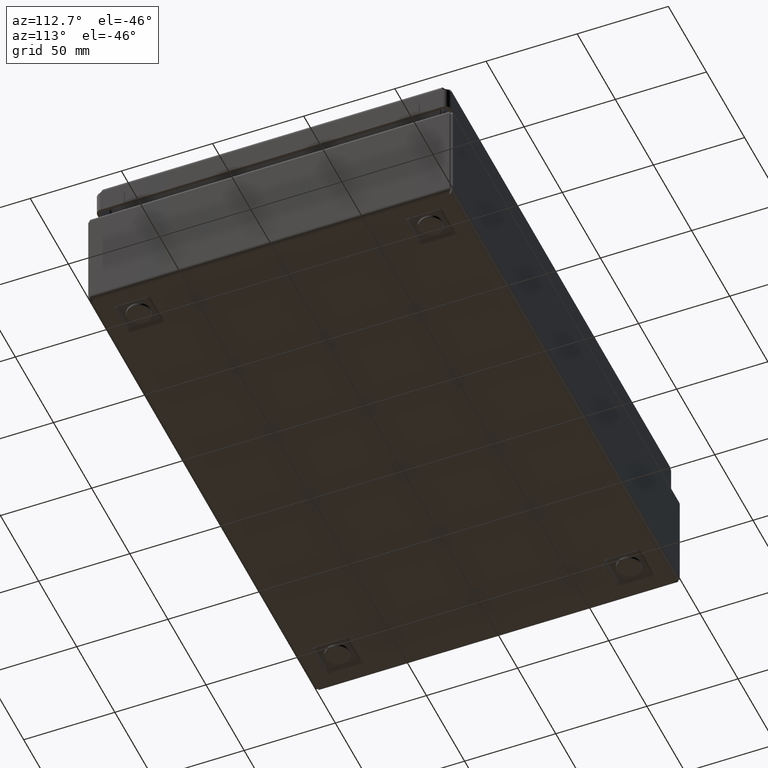
[diagram: clean part render]
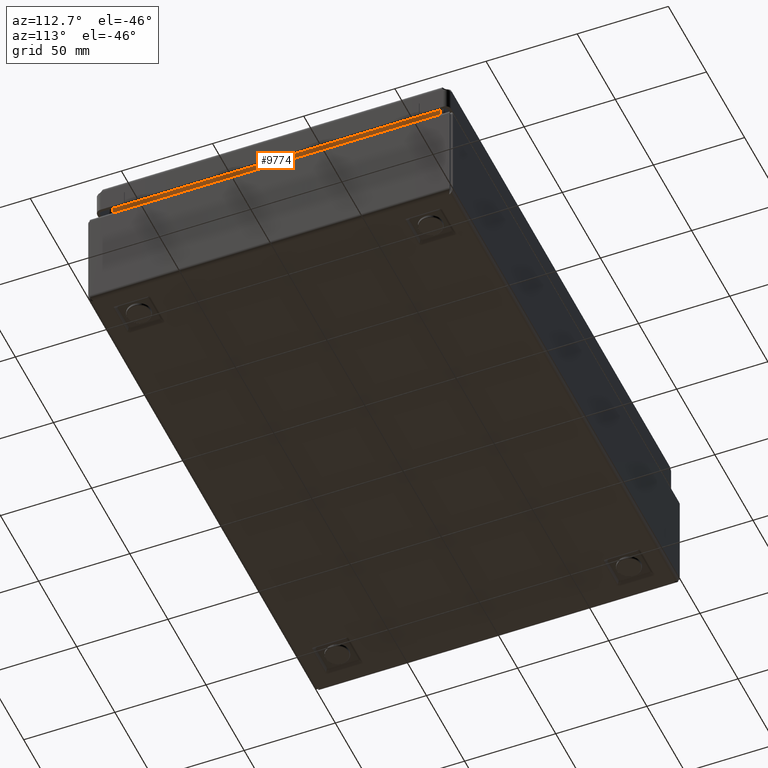
[diagram: same view with one face highlighted and labeled with its STEP entity id]
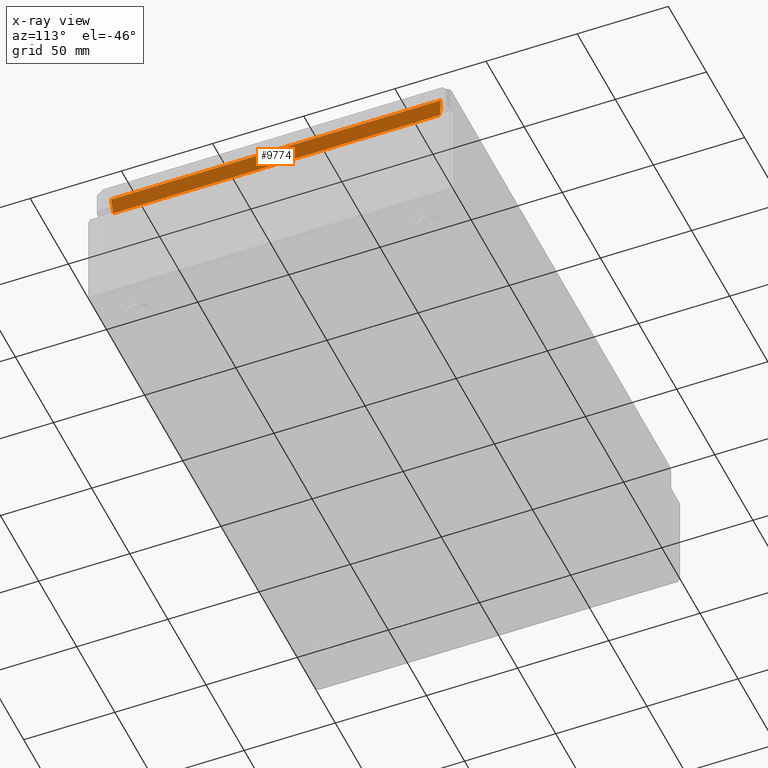
[diagram: x-ray of the same camera — body ghosted, the highlighted face saturated]
A machine part, auxiliary view. The second image highlights one B-rep face of the part: STEP entity #9774.
The next image is the same camera in x-ray: the body ghosted, the highlighted face saturated — about 0% of this face is hidden behind the body in this view.
In plain terms, the highlighted planar face has unit normal (-0.9962, 0, 0.0872).
Its self-contained STEP definition (entity closure, byte-faithful):
#9365 = VERTEX_POINT ( 'NONE', #22168 ) ;
#9629 = EDGE_CURVE ( 'NONE', #9646, #9630, #22828, .T. ) ;
#9630 = VERTEX_POINT ( 'NONE', #22824 ) ;
#9645 = EDGE_CURVE ( 'NONE', #9365, #9646, #22841, .T. ) ;
#9646 = VERTEX_POINT ( 'NONE', #22837 ) ;
#9693 = EDGE_CURVE ( 'NONE', #9630, #9694, #22976, .T. ) ;
#9694 = VERTEX_POINT ( 'NONE', #22972 ) ;
#9713 = EDGE_CURVE ( 'NONE', #9365, #9694, #23049, .T. ) ;
#9774 = ADVANCED_FACE ( 'NONE', ( #23166 ), #23165, .F. ) ;
#9775 = EDGE_LOOP ( 'NONE', ( #9776, #9777, #9778, #9779 ) ) ;
#9776 = ORIENTED_EDGE ( 'NONE', *, *, #9629, .F. ) ;
#9777 = ORIENTED_EDGE ( 'NONE', *, *, #9645, .F. ) ;
#9778 = ORIENTED_EDGE ( 'NONE', *, *, #9713, .T. ) ;
#9779 = ORIENTED_EDGE ( 'NONE', *, *, #9693, .F. ) ;
#22168 = CARTESIAN_POINT ( 'NONE',  ( 140.8468468483539200, -89.60153276509873900, 67.30238836339869100 ) ) ;
#22824 = CARTESIAN_POINT ( 'NONE',  ( 141.6857465055242600, 90.44043242220966800, 76.89105532156465000 ) ) ;
#22825 = DIRECTION ( 'NONE',  ( 0.0000000000000000000, 1.000000000000000000, 0.0000000000000000000 ) ) ;
#22826 = VECTOR ( 'NONE', #22825, 1000.000000000000000 ) ;
#22827 = CARTESIAN_POINT ( 'NONE',  ( 141.6857465055242600, -1586.249999999999800, 76.89105532156465000 ) ) ;
#22828 = LINE ( 'NONE', #22827, #22826 ) ;
#22837 = CARTESIAN_POINT ( 'NONE',  ( 141.6857465055242600, -90.44043242226695200, 76.89105532156465000 ) ) ;
#22838 = DIRECTION ( 'NONE',  ( 0.08682659386478358600, -0.08682659386478358600, 0.9924325091388733800 ) ) ;
#22839 = VECTOR ( 'NONE', #22838, 999.9999999999998900 ) ;
#22840 = CARTESIAN_POINT ( 'NONE',  ( 152.0290287223751300, -100.7837146391197200, 195.1153120416505500 ) ) ;
#22841 = LINE ( 'NONE', #22840, #22839 ) ;
#22972 = CARTESIAN_POINT ( 'NONE',  ( 140.8468468483538900, 89.60153276503946500, 67.30238836339870500 ) ) ;
#22973 = DIRECTION ( 'NONE',  ( -0.08682659386478358600, -0.08682659386478358600, -0.9924325091388733800 ) ) ;
#22974 = VECTOR ( 'NONE', #22973, 999.9999999999998900 ) ;
#22975 = CARTESIAN_POINT ( 'NONE',  ( 128.1120036140227700, 76.86668953070596900, -78.25753587155979600 ) ) ;
#22976 = LINE ( 'NONE', #22975, #22974 ) ;
#23045 = DIRECTION ( 'NONE',  ( 0.0000000000000000000, 1.000000000000000000, 0.0000000000000000000 ) ) ;
#23046 = VECTOR ( 'NONE', #23045, 1000.000000000000000 ) ;
#23048 = CARTESIAN_POINT ( 'NONE',  ( 140.8468468483539200, -1586.249999999999800, 67.30238836339870500 ) ) ;
#23049 = LINE ( 'NONE', #23048, #23046 ) ;
#23161 = DIRECTION ( 'NONE',  ( 0.08715574274820026000, 0.0000000000000000000, 0.9961946980916980300 ) ) ;
#23162 = DIRECTION ( 'NONE',  ( -0.9961946980916981400, 0.0000000000000000000, 0.08715574274820027400 ) ) ;
#23163 = CARTESIAN_POINT ( 'NONE',  ( 140.7452433726146200, -1586.249999999999800, 66.14105532156395400 ) ) ;
#23164 = AXIS2_PLACEMENT_3D ( 'NONE', #23163, #23162, #23161 ) ;
#23165 = PLANE ( 'NONE',  #23164 ) ;
#23166 = FACE_OUTER_BOUND ( 'NONE', #9775, .T. ) ;